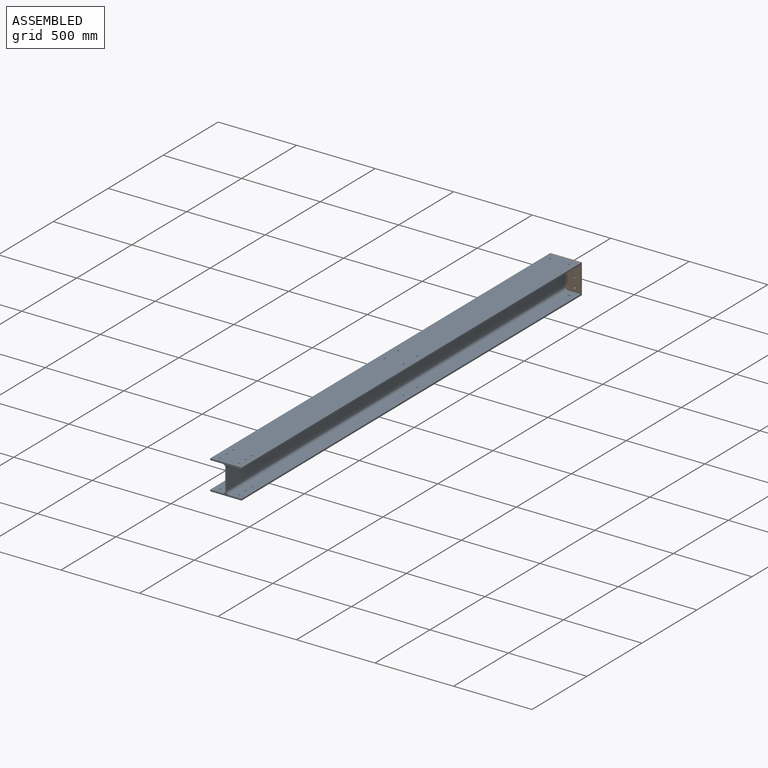
[diagram: assembled view]
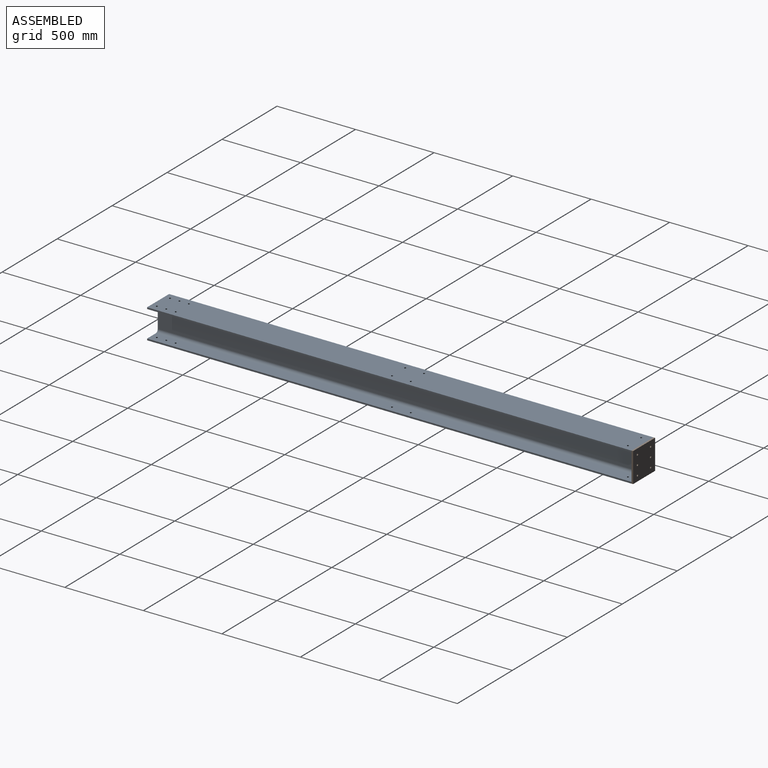
[diagram: assembled view, second angle]
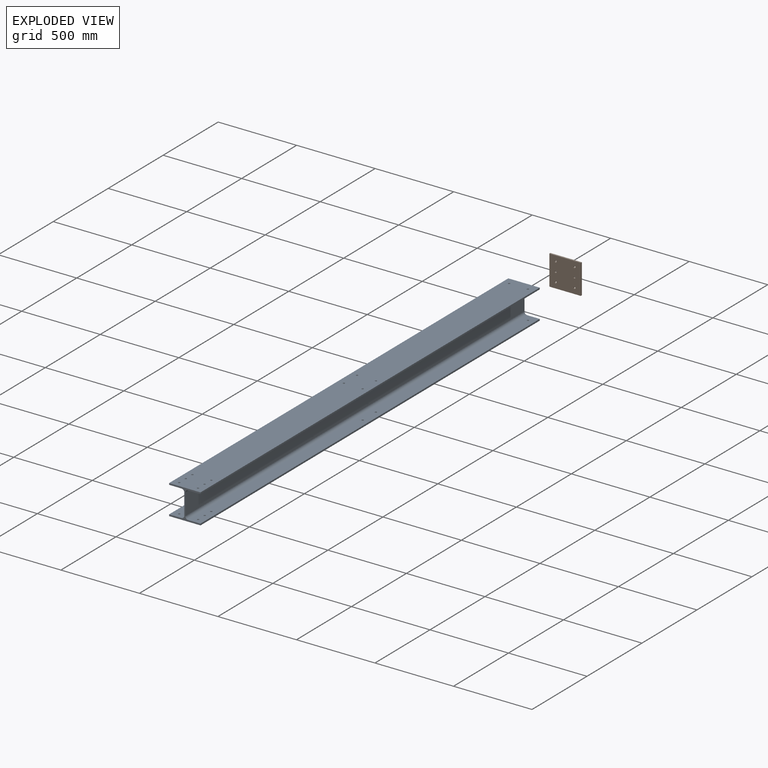
[diagram: exploded view]
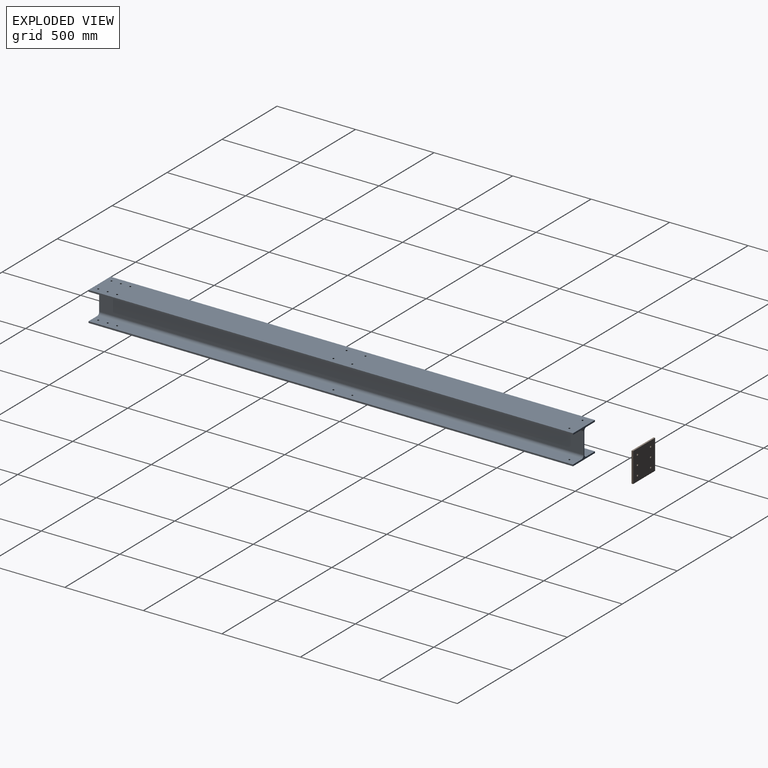
[diagram: exploded view, second angle]
ASSEMBLY  parts=2 mates=3
PART A: 42 faces, bbox 200x190x3085 mm
  f0: plane 3085x10mm, normal (-1,0,0), area 30850mm2, adj f1,f15,f16,f17
  f1: plane 3085x200mm, normal (0,-1,0), area 615642.8mm2, adj f0,f2,f16,f17,f18,f20,f22,f25
  f2: plane 3085x10mm, normal (1,0,0), area 30850mm2, adj f1,f3,f16,f17
  f3: plane 3085x78.75mm, normal (0,1,0), area 242265.2mm2, adj f2,f4,f16,f17,f25,f27,f29,f33
  f4: cylinder r=18mm len=3085mm, axis (0,0,-1), area 87226.3mm2, adj f3,f5,f16,f17
  f5: plane 3085x134mm, normal (1,0,0), area 413390mm2, adj f4,f6,f16,f17
  f6: cylinder r=18mm len=3085mm, axis (0,0,-1), area 87226.3mm2, adj f5,f7,f16,f17
  f7: plane 3085x78.75mm, normal (0,-1,0), area 242265.2mm2, adj f6,f8,f16,f17,f24,f26,f28,f32
  f8: plane 3085x10mm, normal (1,0,0), area 30850mm2, adj f7,f9,f16,f17
  f9: plane 3085x200mm, normal (0,1,0), area 615642.8mm2, adj f8,f10,f16,f17,f19,f21,f23,f24
  f10: plane 3085x10mm, normal (-1,0,0), area 30850mm2, adj f9,f11,f16,f17
  f11: plane 3085x78.75mm, normal (0,-1,0), area 242265.2mm2, adj f10,f12,f16,f17,f19,f21,f23,f31
  f12: cylinder r=18mm len=3085mm, axis (0,0,-1), area 87226.3mm2, adj f11,f13,f16,f17
  f13: plane 3085x134mm, normal (-1,0,0), area 413390mm2, adj f12,f14,f16,f17
  f14: cylinder r=18mm len=3085mm, axis (0,0,-1), area 87226.3mm2, adj f13,f15,f16,f17
  f15: plane 3085x78.75mm, normal (0,1,0), area 242265.2mm2, adj f0,f14,f16,f17,f18,f20,f22,f30
  f16: plane 200x190mm, normal (0,0,1), area 5383.1mm2, adj f0,f1,f2,f3,f4,f5,f6,f7
  f17: plane 200x190mm, normal (0,0,-1), area 5383.1mm2, adj f0,f1,f2,f3,f4,f5,f6,f7
  f18: cylinder r=6mm len=12mm, axis (0,-1,0), area 377mm2, adj f1,f15
  f19: cylinder r=6mm len=12mm, axis (0,-1,0), area 377mm2, adj f9,f11
  f20: cylinder r=6mm len=12mm, axis (0,-1,0), area 377mm2, adj f1,f15
  f21: cylinder r=6mm len=12mm, axis (0,-1,0), area 377mm2, adj f9,f11
  f22: cylinder r=6mm len=12mm, axis (0,-1,0), area 377mm2, adj f1,f15
  f23: cylinder r=6mm len=12mm, axis (0,-1,0), area 377mm2, adj f9,f11
  f24: cylinder r=6mm len=12mm, axis (0,-1,0), area 377mm2, adj f7,f9
  f25: cylinder r=6mm len=12mm, axis (0,-1,0), area 377mm2, adj f1,f3
  f26: cylinder r=6mm len=12mm, axis (0,-1,0), area 377mm2, adj f7,f9
  f27: cylinder r=6mm len=12mm, axis (0,-1,0), area 377mm2, adj f1,f3
  f28: cylinder r=6mm len=12mm, axis (0,-1,0), area 377mm2, adj f7,f9
  f29: cylinder r=6mm len=12mm, axis (0,-1,0), area 377mm2, adj f1,f3
  f30: cylinder r=6mm len=12mm, axis (0,1,0), area 377mm2, adj f1,f15
  f31: cylinder r=6mm len=12mm, axis (0,1,0), area 377mm2, adj f9,f11
  f32: cylinder r=6mm len=12mm, axis (0,1,0), area 377mm2, adj f7,f9
  f33: cylinder r=6mm len=12mm, axis (0,1,0), area 377mm2, adj f1,f3
  f34: cylinder r=6mm len=12mm, axis (0,-1,0), area 377mm2, adj f1,f15
  f35: cylinder r=6mm len=12mm, axis (0,-1,0), area 377mm2, adj f9,f11
  f36: cylinder r=6mm len=12mm, axis (0,-1,0), area 377mm2, adj f7,f9
  f37: cylinder r=6mm len=12mm, axis (0,-1,0), area 377mm2, adj f1,f3
  f38: cylinder r=6mm len=12mm, axis (0,-1,0), area 377mm2, adj f7,f9
  f39: cylinder r=6mm len=12mm, axis (0,-1,0), area 377mm2, adj f1,f3
  f40: cylinder r=6mm len=12mm, axis (0,-1,0), area 377mm2, adj f1,f15
  f41: cylinder r=6mm len=12mm, axis (0,-1,0), area 377mm2, adj f9,f11
PART B: 12 faces, bbox 190x200x10 mm
  f0: plane 200x10mm, normal (1,0,0), area 2000mm2, adj f1,f3,f4,f5
  f1: plane 190x10mm, normal (0,1,0), area 1900mm2, adj f0,f2,f4,f5
  f2: plane 200x10mm, normal (-1,0,0), area 2000mm2, adj f1,f3,f4,f5
  f3: plane 190x10mm, normal (0,-1,0), area 1900mm2, adj f0,f2,f4,f5
  f4: plane 200x190mm, normal (0,0,1), area 37321.4mm2, adj f0,f1,f2,f3,f6,f7,f8,f9
  f5: plane 200x190mm, normal (0,0,-1), area 37321.4mm2, adj f0,f1,f2,f3,f6,f7,f8,f9
  f6: cylinder r=6mm len=12mm, axis (0,0,1), area 377mm2, adj f4,f5
  f7: cylinder r=6mm len=12mm, axis (0,0,1), area 377mm2, adj f4,f5
  f8: cylinder r=6mm len=12mm, axis (0,0,1), area 377mm2, adj f4,f5
  f9: cylinder r=6mm len=12mm, axis (0,0,1), area 377mm2, adj f4,f5
  f10: cylinder r=6mm len=12mm, axis (0,0,1), area 377mm2, adj f4,f5
  f11: cylinder r=6mm len=12mm, axis (0,0,1), area 377mm2, adj f4,f5
PLACE A rot(axis=(1,0,0),90deg) t=(-262.11,-2755,3295)mm
PLACE B rot(axis=(0.58,0.58,-0.58),120deg) t=(-262.11,-2245,3295)mm
MATE planar B.f4 <-> A.f17  axis (0,-1,0) through (-262.11,-2255,3295)mm
MATE planar B.f2 <-> A.f9  axis (0,0,1) through (-162.11,-2245,3390)mm
MATE planar B.f1 <-> A.f8  axis (1,0,0) through (-162.11,-2250,3295)mm
